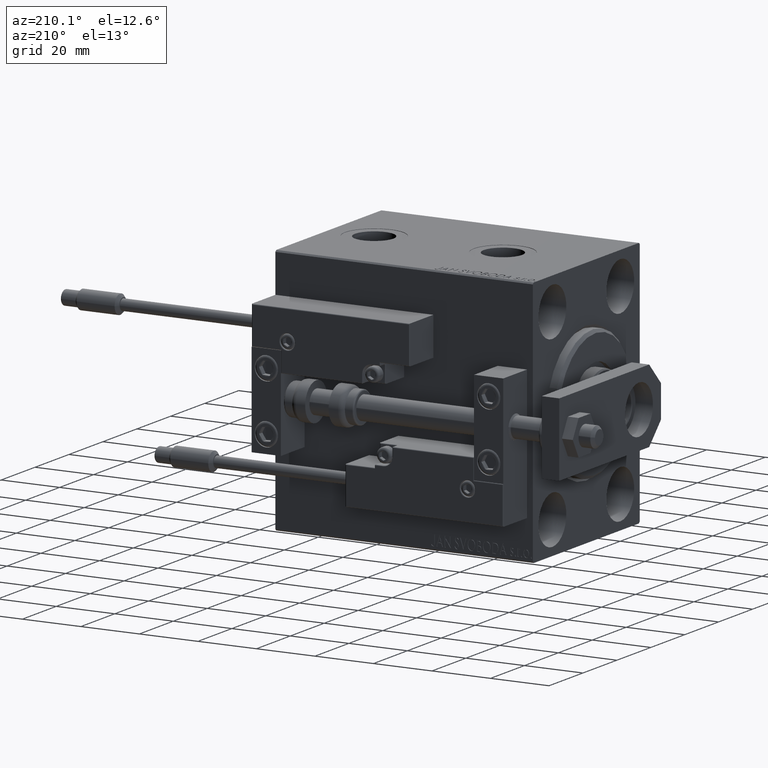
[diagram: clean part render]
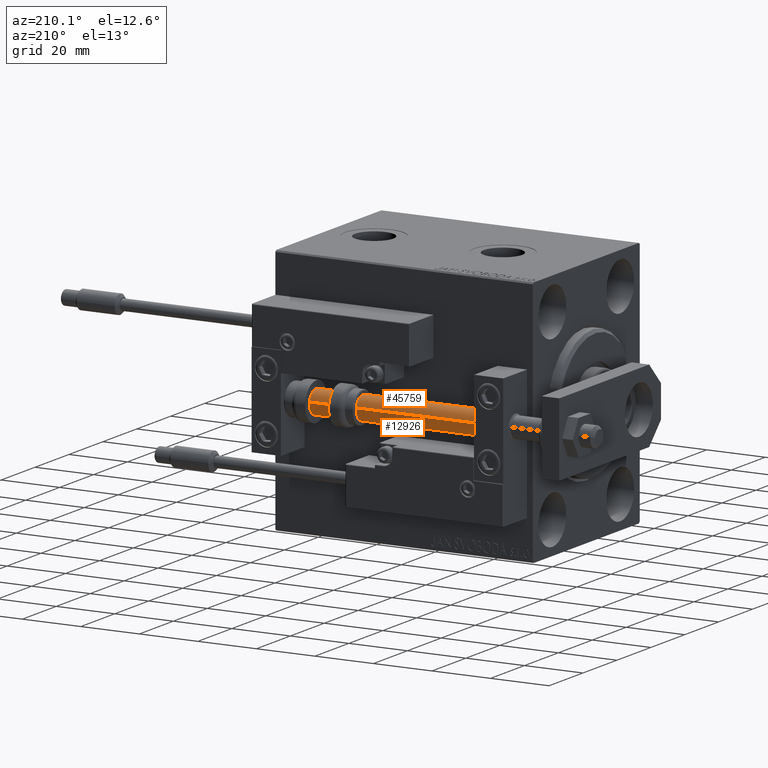
[diagram: same view with one multi-face feature highlighted, each face labeled with its STEP entity id]
A machine part, auxiliary view. The highlighted faces form ONE feature: a constant-radius fillet chain: 2 tangent blend faces with common blend radius 4 mm. The faces share edges in the B-rep.
Their STEP definitions:
[1] entity #45759 (Cylinder):
#1634 = ORIENTED_EDGE ( 'NONE', *, *, #36179, .T. ) ;
#2703 = CARTESIAN_POINT ( 'NONE',  ( 4.000000000000000000, 4.898587196589412829E-16, 88.00000000000000000 ) ) ;
#3071 = CARTESIAN_POINT ( 'NONE',  ( -4.000000000000000000, 0.000000000000000000, 88.00000000000000000 ) ) ;
#3503 = FACE_OUTER_BOUND ( 'NONE', #31487, .T. ) ;
#3543 = ORIENTED_EDGE ( 'NONE', *, *, #21244, .F. ) ;
#4499 = CARTESIAN_POINT ( 'NONE',  ( -4.000000000000000000, 0.000000000000000000, 88.00000000000000000 ) ) ;
#6746 = CARTESIAN_POINT ( 'NONE',  ( 0.000000000000000000, 0.000000000000000000, 88.00000000000000000 ) ) ;
#10686 = CARTESIAN_POINT ( 'NONE',  ( 0.000000000000000000, 0.000000000000000000, 88.00000000000000000 ) ) ;
#13786 = DIRECTION ( 'NONE',  ( -0.000000000000000000, -0.000000000000000000, 1.000000000000000000 ) ) ;
#14428 = VERTEX_POINT ( 'NONE', #2703 ) ;
#14864 = EDGE_CURVE ( 'NONE', #14428, #47409, #17739, .T. ) ;
#17739 = CIRCLE ( 'NONE', #34861, 4.000000000000000000 ) ;
#18880 = DIRECTION ( 'NONE',  ( -1.000000000000000000, 0.000000000000000000, 0.000000000000000000 ) ) ;
#20368 = LINE ( 'NONE', #20872, #24740 ) ;
#20862 = ORIENTED_EDGE ( 'NONE', *, *, #14864, .F. ) ;
#20872 = CARTESIAN_POINT ( 'NONE',  ( 4.000000000000000000, 4.898587196589412829E-16, 88.00000000000000000 ) ) ;
#21244 = EDGE_CURVE ( 'NONE', #47409, #31870, #46725, .T. ) ;
#23716 = DIRECTION ( 'NONE',  ( -0.000000000000000000, -0.000000000000000000, -1.000000000000000000 ) ) ;
#24412 = VERTEX_POINT ( 'NONE', #50228 ) ;
#24740 = VECTOR ( 'NONE', #28803, 1000.000000000000000 ) ;
#24807 = DIRECTION ( 'NONE',  ( 1.000000000000000000, 0.000000000000000000, 0.000000000000000000 ) ) ;
#25581 = ORIENTED_EDGE ( 'NONE', *, *, #30246, .T. ) ;
#28803 = DIRECTION ( 'NONE',  ( -0.000000000000000000, -0.000000000000000000, -1.000000000000000000 ) ) ;
#30246 = EDGE_CURVE ( 'NONE', #14428, #24412, #20368, .T. ) ;
#30390 = DIRECTION ( 'NONE',  ( -0.000000000000000000, -0.000000000000000000, -1.000000000000000000 ) ) ;
#31487 = EDGE_LOOP ( 'NONE', ( #20862, #25581, #1634, #3543 ) ) ;
#31870 = VERTEX_POINT ( 'NONE', #49081 ) ;
#33224 = CARTESIAN_POINT ( 'NONE',  ( 0.000000000000000000, 0.000000000000000000, 2.000000000000029310 ) ) ;
#33285 = VECTOR ( 'NONE', #23716, 1000.000000000000000 ) ;
#34861 = AXIS2_PLACEMENT_3D ( 'NONE', #6746, #46650, #50241 ) ;
#36179 = EDGE_CURVE ( 'NONE', #24412, #31870, #48629, .T. ) ;
#37207 = AXIS2_PLACEMENT_3D ( 'NONE', #33224, #13786, #24807 ) ;
#44761 = AXIS2_PLACEMENT_3D ( 'NONE', #10686, #30390, #18880 ) ;
#45759 = ADVANCED_FACE ( 'NONE', ( #3503 ), #50076, .T. ) ;
#46650 = DIRECTION ( 'NONE',  ( 0.000000000000000000, 0.000000000000000000, 1.000000000000000000 ) ) ;
#46725 = LINE ( 'NONE', #4499, #33285 ) ;
#47409 = VERTEX_POINT ( 'NONE', #3071 ) ;
#48629 = CIRCLE ( 'NONE', #37207, 4.000000000000000000 ) ;
#49081 = CARTESIAN_POINT ( 'NONE',  ( -4.000000000000000000, 0.000000000000000000, 2.000000000000029310 ) ) ;
#50076 = CYLINDRICAL_SURFACE ( 'NONE', #44761, 4.000000000000000000 ) ;
#50228 = CARTESIAN_POINT ( 'NONE',  ( 4.000000000000000000, 4.898587196589412829E-16, 2.000000000000029310 ) ) ;
#50241 = DIRECTION ( 'NONE',  ( 1.000000000000000000, 0.000000000000000000, 0.000000000000000000 ) ) ;
[2] entity #12926 (Cylinder):
#2039 = EDGE_CURVE ( 'NONE', #47409, #14428, #25553, .T. ) ;
#2703 = CARTESIAN_POINT ( 'NONE',  ( 4.000000000000000000, 4.898587196589412829E-16, 88.00000000000000000 ) ) ;
#3071 = CARTESIAN_POINT ( 'NONE',  ( -4.000000000000000000, 0.000000000000000000, 88.00000000000000000 ) ) ;
#4499 = CARTESIAN_POINT ( 'NONE',  ( -4.000000000000000000, 0.000000000000000000, 88.00000000000000000 ) ) ;
#4657 = DIRECTION ( 'NONE',  ( 1.000000000000000000, 0.000000000000000000, 0.000000000000000000 ) ) ;
#6520 = CARTESIAN_POINT ( 'NONE',  ( 0.000000000000000000, 0.000000000000000000, 88.00000000000000000 ) ) ;
#7517 = DIRECTION ( 'NONE',  ( -1.000000000000000000, 0.000000000000000000, 0.000000000000000000 ) ) ;
#8487 = DIRECTION ( 'NONE',  ( 0.000000000000000000, 0.000000000000000000, 1.000000000000000000 ) ) ;
#12926 = ADVANCED_FACE ( 'NONE', ( #18284 ), #38485, .T. ) ;
#13750 = DIRECTION ( 'NONE',  ( 1.000000000000000000, 0.000000000000000000, 0.000000000000000000 ) ) ;
#13922 = ORIENTED_EDGE ( 'NONE', *, *, #30246, .F. ) ;
#14428 = VERTEX_POINT ( 'NONE', #2703 ) ;
#18284 = FACE_OUTER_BOUND ( 'NONE', #50129, .T. ) ;
#20368 = LINE ( 'NONE', #20872, #24740 ) ;
#20872 = CARTESIAN_POINT ( 'NONE',  ( 4.000000000000000000, 4.898587196589412829E-16, 88.00000000000000000 ) ) ;
#21244 = EDGE_CURVE ( 'NONE', #47409, #31870, #46725, .T. ) ;
#23716 = DIRECTION ( 'NONE',  ( -0.000000000000000000, -0.000000000000000000, -1.000000000000000000 ) ) ;
#24412 = VERTEX_POINT ( 'NONE', #50228 ) ;
#24740 = VECTOR ( 'NONE', #28803, 1000.000000000000000 ) ;
#25553 = CIRCLE ( 'NONE', #34537, 4.000000000000000000 ) ;
#28528 = AXIS2_PLACEMENT_3D ( 'NONE', #37022, #40864, #13750 ) ;
#28688 = ORIENTED_EDGE ( 'NONE', *, *, #48706, .T. ) ;
#28803 = DIRECTION ( 'NONE',  ( -0.000000000000000000, -0.000000000000000000, -1.000000000000000000 ) ) ;
#30246 = EDGE_CURVE ( 'NONE', #14428, #24412, #20368, .T. ) ;
#31006 = ORIENTED_EDGE ( 'NONE', *, *, #2039, .F. ) ;
#31870 = VERTEX_POINT ( 'NONE', #49081 ) ;
#33285 = VECTOR ( 'NONE', #23716, 1000.000000000000000 ) ;
#34537 = AXIS2_PLACEMENT_3D ( 'NONE', #47626, #8487, #4657 ) ;
#37022 = CARTESIAN_POINT ( 'NONE',  ( 0.000000000000000000, 0.000000000000000000, 2.000000000000029310 ) ) ;
#38485 = CYLINDRICAL_SURFACE ( 'NONE', #44601, 4.000000000000000000 ) ;
#40568 = ORIENTED_EDGE ( 'NONE', *, *, #21244, .T. ) ;
#40864 = DIRECTION ( 'NONE',  ( -0.000000000000000000, -0.000000000000000000, 1.000000000000000000 ) ) ;
#42573 = DIRECTION ( 'NONE',  ( -0.000000000000000000, -0.000000000000000000, -1.000000000000000000 ) ) ;
#44601 = AXIS2_PLACEMENT_3D ( 'NONE', #6520, #42573, #7517 ) ;
#46725 = LINE ( 'NONE', #4499, #33285 ) ;
#47409 = VERTEX_POINT ( 'NONE', #3071 ) ;
#47626 = CARTESIAN_POINT ( 'NONE',  ( 0.000000000000000000, 0.000000000000000000, 88.00000000000000000 ) ) ;
#48706 = EDGE_CURVE ( 'NONE', #31870, #24412, #50584, .T. ) ;
#49081 = CARTESIAN_POINT ( 'NONE',  ( -4.000000000000000000, 0.000000000000000000, 2.000000000000029310 ) ) ;
#50129 = EDGE_LOOP ( 'NONE', ( #13922, #31006, #40568, #28688 ) ) ;
#50228 = CARTESIAN_POINT ( 'NONE',  ( 4.000000000000000000, 4.898587196589412829E-16, 2.000000000000029310 ) ) ;
#50584 = CIRCLE ( 'NONE', #28528, 4.000000000000000000 ) ;